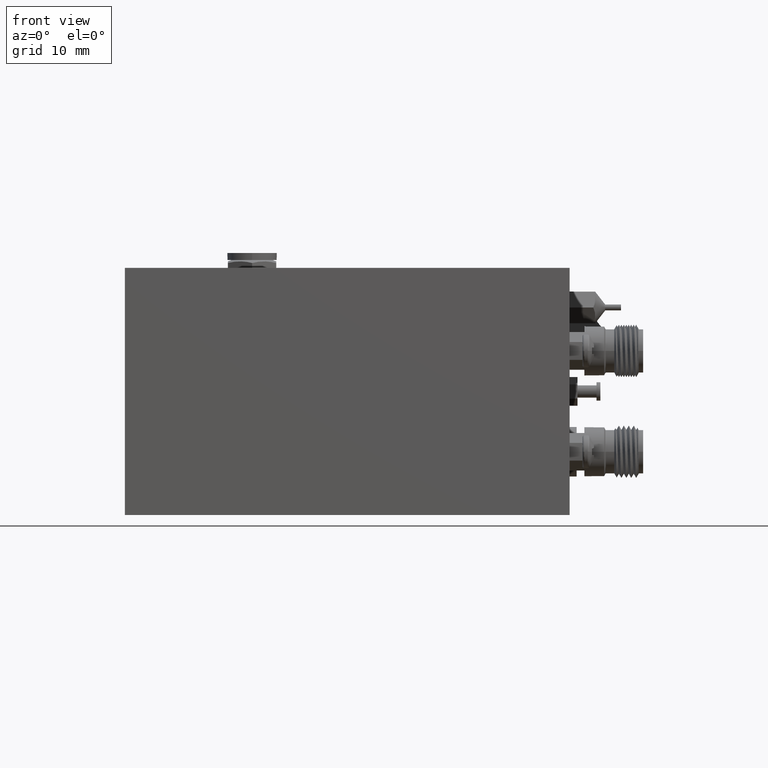
[diagram: clean part render]
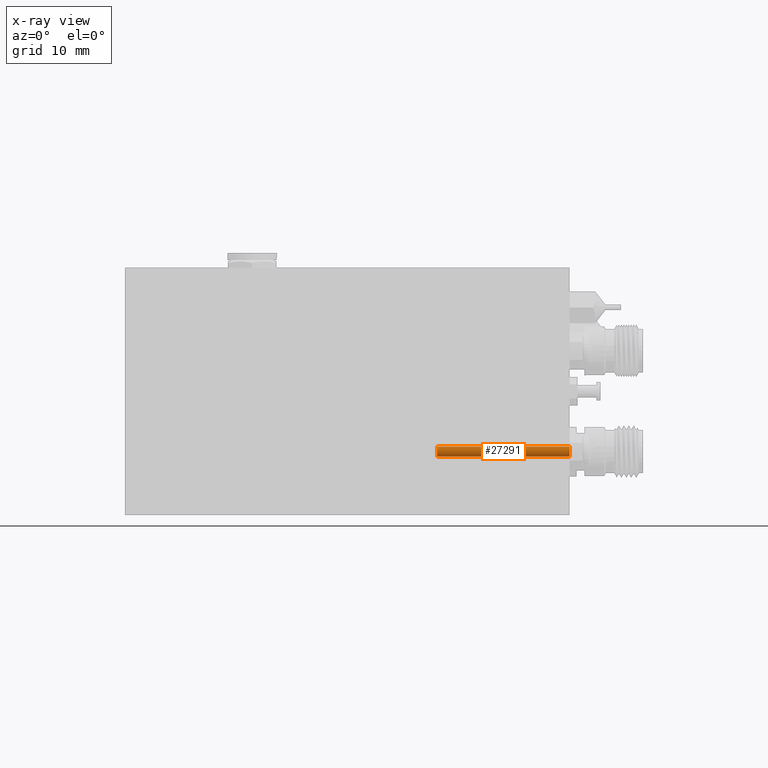
[diagram: x-ray — body ghosted, one internal face saturated and labeled with its STEP entity id]
A machine part, front view, then the same camera in x-ray: the body is ghosted and one INTERNAL B-rep face — a face not visible from any outside direction — is saturated and labeled: STEP entity #27291.
In plain terms, the highlighted cylindrical surface (edge-blend (fillet) strip) has radius 0.635 mm, axis along (1, -0, -0).
Its self-contained STEP definition (entity closure, byte-faithful):
#872 = FACE_OUTER_BOUND ( 'NONE', #7613, .T. ) ;
#1074 = CARTESIAN_POINT ( 'NONE',  ( 1.125000000000000000, -0.6250000000000003300, 0.3450000000000000300 ) ) ;
#3935 = EDGE_CURVE ( 'NONE', #9771, #16105, #11861, .T. ) ;
#4193 = CYLINDRICAL_SURFACE ( 'NONE', #33846, 0.02500000000000000500 ) ;
#4684 = AXIS2_PLACEMENT_3D ( 'NONE', #16611, #7249, #13259 ) ;
#5844 = DIRECTION ( 'NONE',  ( 0.0000000000000000000, 0.0000000000000000000, -1.000000000000000000 ) ) ;
#6174 = VECTOR ( 'NONE', #34682, 39.37007874015748100 ) ;
#6216 = CARTESIAN_POINT ( 'NONE',  ( 0.4549999999999999000, -0.6250000000000003300, 0.3450000000000000300 ) ) ;
#6225 = CARTESIAN_POINT ( 'NONE',  ( 1.125000000000000000, -0.6250000000000003300, 0.2949999999999999800 ) ) ;
#7249 = DIRECTION ( 'NONE',  ( 1.000000000000000000, 0.0000000000000000000, 0.0000000000000000000 ) ) ;
#7613 = EDGE_LOOP ( 'NONE', ( #27761, #20614, #31729, #35028 ) ) ;
#7802 = DIRECTION ( 'NONE',  ( 1.000000000000000000, -0.0000000000000000000, -0.0000000000000000000 ) ) ;
#7837 = EDGE_CURVE ( 'NONE', #9771, #35423, #34897, .T. ) ;
#9771 = VERTEX_POINT ( 'NONE', #6216 ) ;
#11861 = LINE ( 'NONE', #37994, #26086 ) ;
#13141 = CARTESIAN_POINT ( 'NONE',  ( 0.4549999999999999000, -0.6250000000000003300, 0.3200000000000000100 ) ) ;
#13259 = DIRECTION ( 'NONE',  ( 0.0000000000000000000, 0.0000000000000000000, -1.000000000000000000 ) ) ;
#16105 = VERTEX_POINT ( 'NONE', #1074 ) ;
#16170 = CARTESIAN_POINT ( 'NONE',  ( 0.4549999999999999000, -0.6250000000000003300, 0.2949999999999999800 ) ) ;
#16611 = CARTESIAN_POINT ( 'NONE',  ( 1.125000000000000000, -0.6250000000000003300, 0.3200000000000000100 ) ) ;
#17150 = EDGE_CURVE ( 'NONE', #35423, #32065, #23360, .T. ) ;
#20240 = AXIS2_PLACEMENT_3D ( 'NONE', #36221, #33190, #5844 ) ;
#20614 = ORIENTED_EDGE ( 'NONE', *, *, #3935, .T. ) ;
#23268 = EDGE_CURVE ( 'NONE', #16105, #32065, #37928, .T. ) ;
#23360 = LINE ( 'NONE', #36638, #6174 ) ;
#26086 = VECTOR ( 'NONE', #7802, 39.37007874015748100 ) ;
#27291 = ADVANCED_FACE ( 'NONE', ( #872 ), #4193, .F. ) ;
#27761 = ORIENTED_EDGE ( 'NONE', *, *, #7837, .F. ) ;
#31551 = DIRECTION ( 'NONE',  ( 1.000000000000000000, -0.0000000000000000000, -0.0000000000000000000 ) ) ;
#31682 = DIRECTION ( 'NONE',  ( 0.0000000000000000000, 0.0000000000000000000, -1.000000000000000000 ) ) ;
#31729 = ORIENTED_EDGE ( 'NONE', *, *, #23268, .T. ) ;
#32065 = VERTEX_POINT ( 'NONE', #6225 ) ;
#33190 = DIRECTION ( 'NONE',  ( 1.000000000000000000, 0.0000000000000000000, 0.0000000000000000000 ) ) ;
#33846 = AXIS2_PLACEMENT_3D ( 'NONE', #13141, #31551, #31682 ) ;
#34682 = DIRECTION ( 'NONE',  ( 1.000000000000000000, -0.0000000000000000000, -0.0000000000000000000 ) ) ;
#34897 = CIRCLE ( 'NONE', #20240, 0.02500000000000000500 ) ;
#35028 = ORIENTED_EDGE ( 'NONE', *, *, #17150, .F. ) ;
#35423 = VERTEX_POINT ( 'NONE', #16170 ) ;
#36221 = CARTESIAN_POINT ( 'NONE',  ( 0.4549999999999999000, -0.6250000000000003300, 0.3200000000000000100 ) ) ;
#36638 = CARTESIAN_POINT ( 'NONE',  ( 0.4549999999999999000, -0.6250000000000003300, 0.2949999999999999800 ) ) ;
#37928 = CIRCLE ( 'NONE', #4684, 0.02500000000000000500 ) ;
#37994 = CARTESIAN_POINT ( 'NONE',  ( 0.4549999999999999000, -0.6250000000000003300, 0.3450000000000000300 ) ) ;